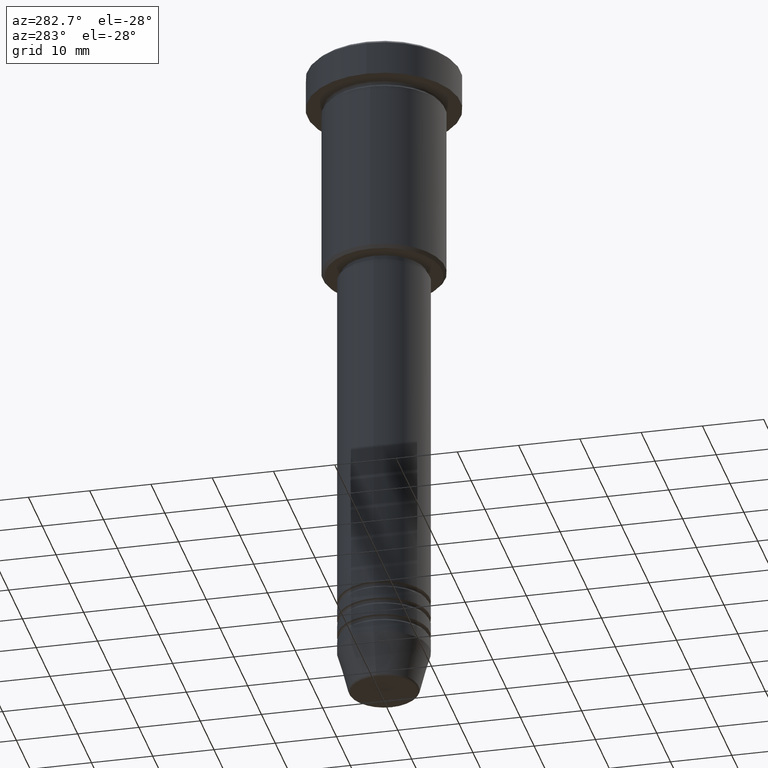
[diagram: clean part render]
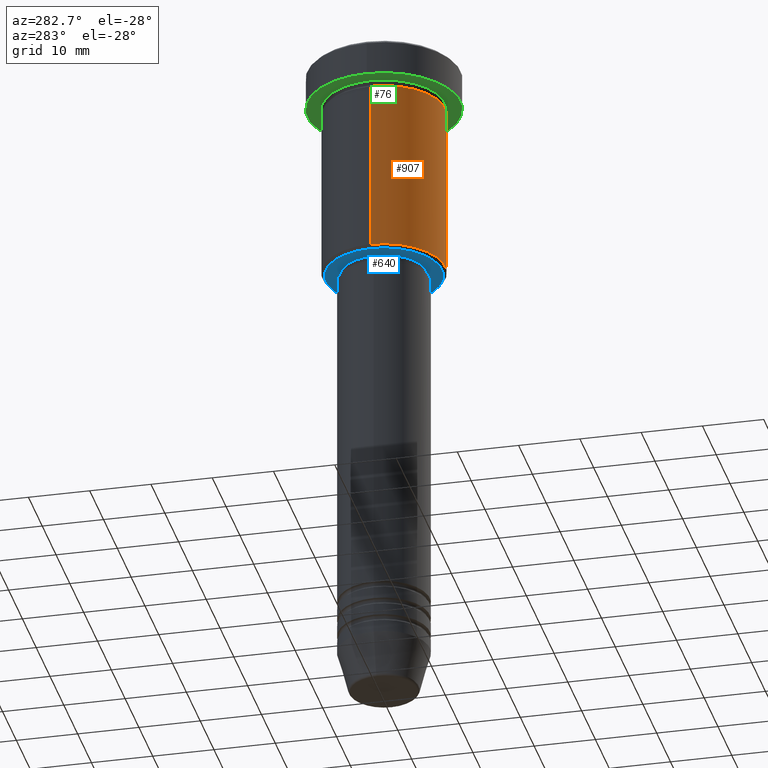
[diagram: same view with three faces highlighted in distinct colors, each labeled with its STEP entity id]
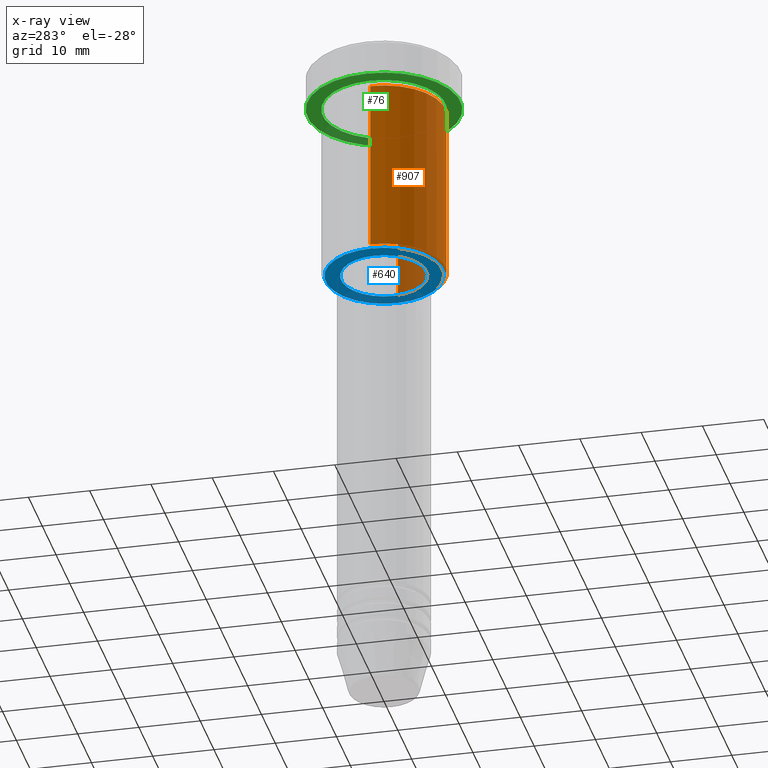
[diagram: x-ray of the same camera — body ghosted, the three highlighted faces saturated]
A machine part, auxiliary view with three faces highlighted in distinct colors.
The next image is the same camera in x-ray (body ghosted, the three faces saturated) — at least one of them is partly hidden behind the body in this view.
Their STEP definitions:

[orange] entity #907 — the highlighted cylindrical surface (partial cylindrical patch) has radius 10 mm, axis along (-0, -0, 1).
#157 = DIRECTION ( 'NONE',  ( -0.000000000000000000, -0.000000000000000000, 1.000000000000000000 ) ) ;
#163 = CYLINDRICAL_SURFACE ( 'NONE', #1075, 10.00000000000000000 ) ;
#194 = EDGE_CURVE ( 'NONE', #1021, #590, #792, .T. ) ;
#212 = ORIENTED_EDGE ( 'NONE', *, *, #829, .T. ) ;
#215 = AXIS2_PLACEMENT_3D ( 'NONE', #293, #225, #660 ) ;
#225 = DIRECTION ( 'NONE',  ( -0.000000000000000000, -0.000000000000000000, 1.000000000000000000 ) ) ;
#293 = CARTESIAN_POINT ( 'NONE',  ( 0.000000000000000000, 0.000000000000000000, -35.50000000000001421 ) ) ;
#301 = DIRECTION ( 'NONE',  ( -0.000000000000000000, -0.000000000000000000, 1.000000000000000000 ) ) ;
#312 = DIRECTION ( 'NONE',  ( 1.000000000000000000, 0.000000000000000000, 0.000000000000000000 ) ) ;
#313 = VERTEX_POINT ( 'NONE', #827 ) ;
#345 = DIRECTION ( 'NONE',  ( -0.000000000000000000, -0.000000000000000000, 1.000000000000000000 ) ) ;
#388 = ORIENTED_EDGE ( 'NONE', *, *, #194, .T. ) ;
#395 = DIRECTION ( 'NONE',  ( -0.000000000000000000, -0.000000000000000000, 1.000000000000000000 ) ) ;
#403 = VERTEX_POINT ( 'NONE', #638 ) ;
#429 = CARTESIAN_POINT ( 'NONE',  ( 10.00000000000000000, 0.000000000000000000, 0.000000000000000000 ) ) ;
#456 = EDGE_CURVE ( 'NONE', #403, #590, #941, .T. ) ;
#461 = AXIS2_PLACEMENT_3D ( 'NONE', #657, #301, #312 ) ;
#470 = CARTESIAN_POINT ( 'NONE',  ( 10.00000000000000000, 0.000000000000000000, -35.50000000000001421 ) ) ;
#590 = VERTEX_POINT ( 'NONE', #1053 ) ;
#608 = ORIENTED_EDGE ( 'NONE', *, *, #754, .F. ) ;
#638 = CARTESIAN_POINT ( 'NONE',  ( -10.00000000000000000, 1.224646799147353256E-15, -6.999999999999996447 ) ) ;
#657 = CARTESIAN_POINT ( 'NONE',  ( 0.000000000000000000, 0.000000000000000000, -6.999999999999996447 ) ) ;
#660 = DIRECTION ( 'NONE',  ( -1.000000000000000000, 0.000000000000000000, 0.000000000000000000 ) ) ;
#692 = FACE_OUTER_BOUND ( 'NONE', #1137, .T. ) ;
#696 = VECTOR ( 'NONE', #395, 1000.000000000000000 ) ;
#754 = EDGE_CURVE ( 'NONE', #313, #403, #931, .T. ) ;
#787 = CIRCLE ( 'NONE', #215, 10.00000000000000000 ) ;
#792 = LINE ( 'NONE', #429, #824 ) ;
#824 = VECTOR ( 'NONE', #345, 1000.000000000000000 ) ;
#827 = CARTESIAN_POINT ( 'NONE',  ( -10.00000000000000000, 1.224646799147353256E-15, -35.50000000000001421 ) ) ;
#829 = EDGE_CURVE ( 'NONE', #313, #1021, #787, .T. ) ;
#840 = CARTESIAN_POINT ( 'NONE',  ( -10.00000000000000000, 1.224646799147353256E-15, 0.000000000000000000 ) ) ;
#907 = ADVANCED_FACE ( 'NONE', ( #692 ), #163, .T. ) ;
#931 = LINE ( 'NONE', #840, #696 ) ;
#941 = CIRCLE ( 'NONE', #461, 10.00000000000000000 ) ;
#974 = CARTESIAN_POINT ( 'NONE',  ( 0.000000000000000000, 0.000000000000000000, 0.000000000000000000 ) ) ;
#1021 = VERTEX_POINT ( 'NONE', #470 ) ;
#1053 = CARTESIAN_POINT ( 'NONE',  ( 10.00000000000000000, 0.000000000000000000, -6.999999999999996447 ) ) ;
#1057 = DIRECTION ( 'NONE',  ( 1.000000000000000000, 0.000000000000000000, 0.000000000000000000 ) ) ;
#1075 = AXIS2_PLACEMENT_3D ( 'NONE', #974, #157, #1057 ) ;
#1085 = ORIENTED_EDGE ( 'NONE', *, *, #456, .F. ) ;
#1137 = EDGE_LOOP ( 'NONE', ( #608, #212, #388, #1085 ) ) ;

[blue] entity #640 — the highlighted planar face has unit normal (0, 0, -1).
#55 = EDGE_LOOP ( 'NONE', ( #659, #511 ) ) ;
#56 = DIRECTION ( 'NONE',  ( 0.000000000000000000, 0.000000000000000000, -1.000000000000000000 ) ) ;
#65 = CARTESIAN_POINT ( 'NONE',  ( 9.500000000000008882, 0.000000000000000000, -36.00000000000000711 ) ) ;
#84 = EDGE_CURVE ( 'NONE', #686, #174, #364, .T. ) ;
#111 = DIRECTION ( 'NONE',  ( 1.000000000000000000, 0.000000000000000000, 0.000000000000000000 ) ) ;
#118 = CARTESIAN_POINT ( 'NONE',  ( -6.999999999999999112, 8.572527594031472204E-16, -36.00000000000000711 ) ) ;
#145 = AXIS2_PLACEMENT_3D ( 'NONE', #414, #328, #344 ) ;
#174 = VERTEX_POINT ( 'NONE', #262 ) ;
#177 = AXIS2_PLACEMENT_3D ( 'NONE', #1078, #988, #182 ) ;
#182 = DIRECTION ( 'NONE',  ( -1.000000000000000000, 0.000000000000000000, 0.000000000000000000 ) ) ;
#224 = DIRECTION ( 'NONE',  ( -0.000000000000000000, -0.000000000000000000, 1.000000000000000000 ) ) ;
#233 = CIRCLE ( 'NONE', #1056, 6.999999999999999112 ) ;
#262 = CARTESIAN_POINT ( 'NONE',  ( -9.500000000000008882, 1.194030629168669864E-15, -36.00000000000000711 ) ) ;
#285 = VERTEX_POINT ( 'NONE', #1016 ) ;
#319 = FACE_BOUND ( 'NONE', #55, .T. ) ;
#328 = DIRECTION ( 'NONE',  ( 0.000000000000000000, 0.000000000000000000, -1.000000000000000000 ) ) ;
#331 = PLANE ( 'NONE',  #1133 ) ;
#344 = DIRECTION ( 'NONE',  ( -1.000000000000000000, 0.000000000000000000, 0.000000000000000000 ) ) ;
#357 = ORIENTED_EDGE ( 'NONE', *, *, #890, .T. ) ;
#364 = CIRCLE ( 'NONE', #177, 9.500000000000008882 ) ;
#412 = DIRECTION ( 'NONE',  ( -1.000000000000000000, 0.000000000000000000, -0.000000000000000000 ) ) ;
#414 = CARTESIAN_POINT ( 'NONE',  ( 0.000000000000000000, 0.000000000000000000, -36.00000000000000711 ) ) ;
#418 = FACE_OUTER_BOUND ( 'NONE', #641, .T. ) ;
#426 = CIRCLE ( 'NONE', #145, 9.500000000000008882 ) ;
#511 = ORIENTED_EDGE ( 'NONE', *, *, #539, .T. ) ;
#527 = EDGE_CURVE ( 'NONE', #285, #558, #233, .T. ) ;
#539 = EDGE_CURVE ( 'NONE', #558, #285, #847, .T. ) ;
#550 = AXIS2_PLACEMENT_3D ( 'NONE', #832, #224, #111 ) ;
#558 = VERTEX_POINT ( 'NONE', #118 ) ;
#640 = ADVANCED_FACE ( 'NONE', ( #418, #319 ), #331, .T. ) ;
#641 = EDGE_LOOP ( 'NONE', ( #916, #357 ) ) ;
#659 = ORIENTED_EDGE ( 'NONE', *, *, #527, .T. ) ;
#686 = VERTEX_POINT ( 'NONE', #65 ) ;
#741 = DIRECTION ( 'NONE',  ( 1.000000000000000000, 0.000000000000000000, 0.000000000000000000 ) ) ;
#755 = CARTESIAN_POINT ( 'NONE',  ( 0.000000000000000000, 0.000000000000000000, -36.00000000000000711 ) ) ;
#832 = CARTESIAN_POINT ( 'NONE',  ( 0.000000000000000000, 0.000000000000000000, -36.00000000000000711 ) ) ;
#847 = CIRCLE ( 'NONE', #550, 6.999999999999999112 ) ;
#882 = CARTESIAN_POINT ( 'NONE',  ( 0.000000000000000000, 10.00000000000000000, -36.00000000000000711 ) ) ;
#890 = EDGE_CURVE ( 'NONE', #174, #686, #426, .T. ) ;
#916 = ORIENTED_EDGE ( 'NONE', *, *, #84, .T. ) ;
#988 = DIRECTION ( 'NONE',  ( 0.000000000000000000, 0.000000000000000000, -1.000000000000000000 ) ) ;
#1016 = CARTESIAN_POINT ( 'NONE',  ( 6.999999999999999112, 0.000000000000000000, -36.00000000000000711 ) ) ;
#1056 = AXIS2_PLACEMENT_3D ( 'NONE', #755, #1123, #741 ) ;
#1078 = CARTESIAN_POINT ( 'NONE',  ( 0.000000000000000000, 0.000000000000000000, -36.00000000000000711 ) ) ;
#1123 = DIRECTION ( 'NONE',  ( -0.000000000000000000, -0.000000000000000000, 1.000000000000000000 ) ) ;
#1133 = AXIS2_PLACEMENT_3D ( 'NONE', #882, #56, #412 ) ;

[green] entity #76 — the highlighted planar face has unit normal (0, 0, -1).
#28 = VERTEX_POINT ( 'NONE', #360 ) ;
#30 = ORIENTED_EDGE ( 'NONE', *, *, #1180, .T. ) ;
#39 = DIRECTION ( 'NONE',  ( -1.000000000000000000, 0.000000000000000000, 0.000000000000000000 ) ) ;
#45 = CARTESIAN_POINT ( 'NONE',  ( 0.000000000000000000, 0.000000000000000000, -5.999999999999996447 ) ) ;
#51 = CIRCLE ( 'NONE', #256, 12.50000000000000000 ) ;
#72 = CIRCLE ( 'NONE', #354, 10.00000000000000000 ) ;
#76 = ADVANCED_FACE ( 'NONE', ( #1083, #449 ), #443, .T. ) ;
#79 = CARTESIAN_POINT ( 'NONE',  ( 10.00000000000000000, 1.224646799147353256E-15, -5.999999999999996447 ) ) ;
#102 = VERTEX_POINT ( 'NONE', #79 ) ;
#122 = DIRECTION ( 'NONE',  ( -0.000000000000000000, -0.000000000000000000, 1.000000000000000000 ) ) ;
#132 = CARTESIAN_POINT ( 'NONE',  ( 0.000000000000000000, 0.000000000000000000, -5.999999999999996447 ) ) ;
#237 = CIRCLE ( 'NONE', #1061, 12.50000000000000000 ) ;
#256 = AXIS2_PLACEMENT_3D ( 'NONE', #643, #740, #547 ) ;
#288 = CARTESIAN_POINT ( 'NONE',  ( 12.50000000000000000, 0.000000000000000000, -5.999999999999996447 ) ) ;
#354 = AXIS2_PLACEMENT_3D ( 'NONE', #45, #684, #1044 ) ;
#360 = CARTESIAN_POINT ( 'NONE',  ( -12.50000000000000000, 1.530808498934191521E-15, -5.999999999999996447 ) ) ;
#393 = EDGE_LOOP ( 'NONE', ( #507, #30 ) ) ;
#402 = AXIS2_PLACEMENT_3D ( 'NONE', #618, #530, #1001 ) ;
#443 = PLANE ( 'NONE',  #402 ) ;
#449 = FACE_OUTER_BOUND ( 'NONE', #1022, .T. ) ;
#464 = CIRCLE ( 'NONE', #619, 10.00000000000000000 ) ;
#507 = ORIENTED_EDGE ( 'NONE', *, *, #1101, .T. ) ;
#530 = DIRECTION ( 'NONE',  ( 0.000000000000000000, 0.000000000000000000, -1.000000000000000000 ) ) ;
#547 = DIRECTION ( 'NONE',  ( 1.000000000000000000, 0.000000000000000000, 0.000000000000000000 ) ) ;
#559 = CARTESIAN_POINT ( 'NONE',  ( 0.000000000000000000, 0.000000000000000000, -5.999999999999996447 ) ) ;
#618 = CARTESIAN_POINT ( 'NONE',  ( 0.000000000000000000, 12.50000000000000000, -5.999999999999996447 ) ) ;
#619 = AXIS2_PLACEMENT_3D ( 'NONE', #132, #770, #39 ) ;
#625 = ORIENTED_EDGE ( 'NONE', *, *, #1043, .F. ) ;
#643 = CARTESIAN_POINT ( 'NONE',  ( 0.000000000000000000, 0.000000000000000000, -5.999999999999996447 ) ) ;
#684 = DIRECTION ( 'NONE',  ( -0.000000000000000000, -0.000000000000000000, 1.000000000000000000 ) ) ;
#740 = DIRECTION ( 'NONE',  ( -0.000000000000000000, -0.000000000000000000, 1.000000000000000000 ) ) ;
#770 = DIRECTION ( 'NONE',  ( -0.000000000000000000, -0.000000000000000000, 1.000000000000000000 ) ) ;
#843 = CARTESIAN_POINT ( 'NONE',  ( -10.00000000000000000, 0.000000000000000000, -5.999999999999996447 ) ) ;
#866 = ORIENTED_EDGE ( 'NONE', *, *, #994, .F. ) ;
#933 = DIRECTION ( 'NONE',  ( 1.000000000000000000, 0.000000000000000000, 0.000000000000000000 ) ) ;
#994 = EDGE_CURVE ( 'NONE', #28, #1034, #51, .T. ) ;
#1001 = DIRECTION ( 'NONE',  ( -1.000000000000000000, 0.000000000000000000, -0.000000000000000000 ) ) ;
#1022 = EDGE_LOOP ( 'NONE', ( #625, #866 ) ) ;
#1034 = VERTEX_POINT ( 'NONE', #288 ) ;
#1043 = EDGE_CURVE ( 'NONE', #1034, #28, #237, .T. ) ;
#1044 = DIRECTION ( 'NONE',  ( -1.000000000000000000, 0.000000000000000000, 0.000000000000000000 ) ) ;
#1045 = VERTEX_POINT ( 'NONE', #843 ) ;
#1061 = AXIS2_PLACEMENT_3D ( 'NONE', #559, #122, #933 ) ;
#1083 = FACE_BOUND ( 'NONE', #393, .T. ) ;
#1101 = EDGE_CURVE ( 'NONE', #1045, #102, #464, .T. ) ;
#1180 = EDGE_CURVE ( 'NONE', #102, #1045, #72, .T. ) ;